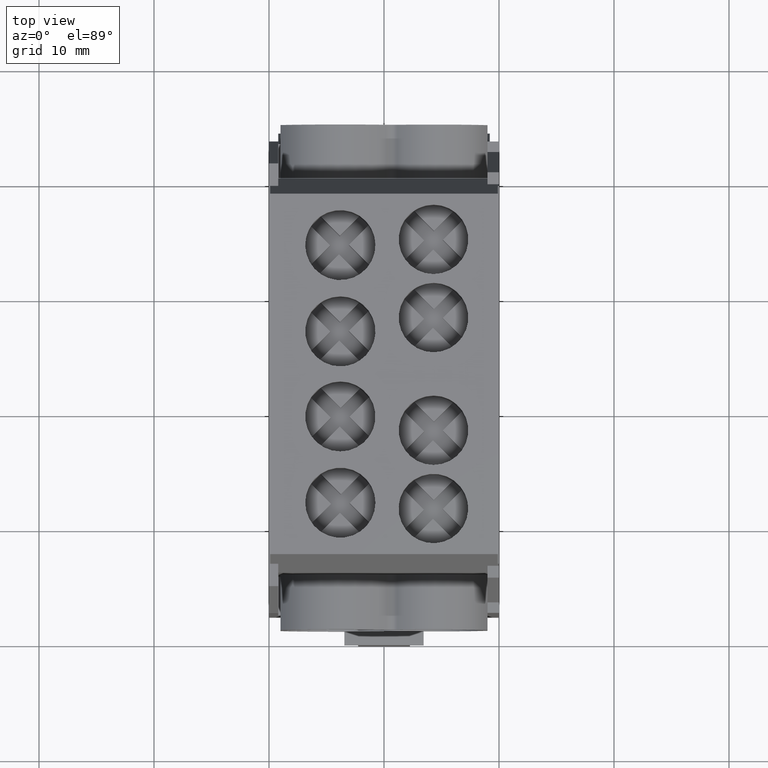
[diagram: clean part render]
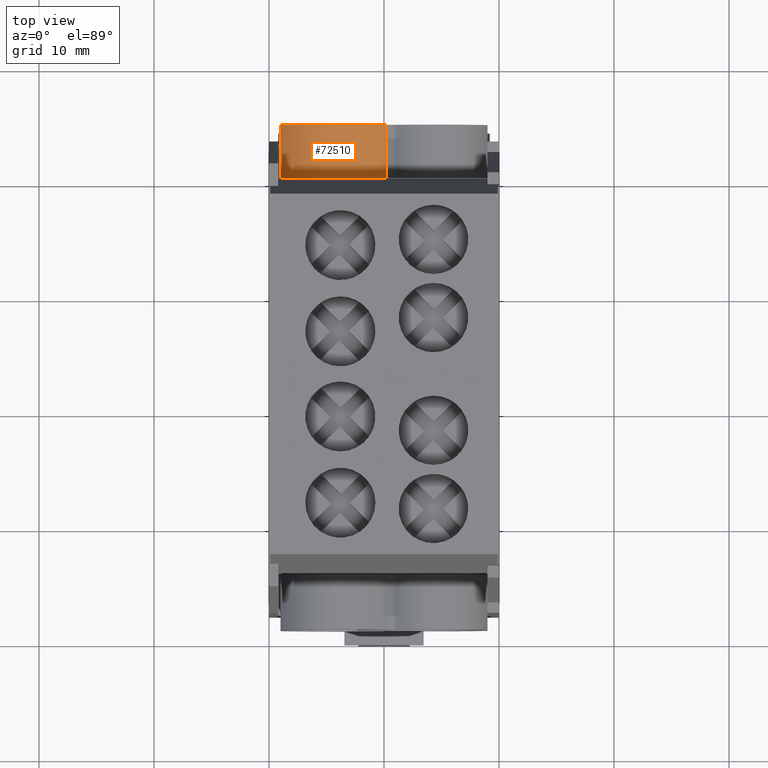
[diagram: same view with one face highlighted and labeled with its STEP entity id]
A machine part, top view. The second image highlights one B-rep face of the part: STEP entity #72510.
In plain terms, the highlighted cylindrical surface (partial cylindrical patch) has radius 6.05 mm, axis along (0, 1, 0).
Its self-contained STEP definition (entity closure, byte-faithful):
#8230=CARTESIAN_POINT('',(-9.,17.15,-18.6530301194917));
#8240=VERTEX_POINT('',#8230);
#8270=CARTESIAN_POINT('',(-3.8,17.15,-21.745359338705));
#8280=DIRECTION('',(2.77555756156289E-16,1.,5.80952514931361E-16));
#8290=DIRECTION('',(-0.859504132231404,-5.83812404768541E-17,
0.511128796564174));
#8300=AXIS2_PLACEMENT_3D('',#8270,#8280,#8290);
#8310=CIRCLE('',#8300,6.05);
#8320=CARTESIAN_POINT('',(0.169149574278855,17.15,-17.1793598142852));
#8330=VERTEX_POINT('',#8320);
#8340=EDGE_CURVE('',#8240,#8330,#8310,.T.);
#67680=CARTESIAN_POINT('',(0.169149574278856,21.95,-17.1793598142852));
#67690=VERTEX_POINT('',#67680);
#67720=CARTESIAN_POINT('',(-3.79999999999999,21.95,-21.745359338705));
#67730=DIRECTION('',(2.77555756156289E-16,1.,5.80952514931361E-16));
#67740=DIRECTION('',(-0.859504132231404,-5.83812404768541E-17,
0.511128796564174));
#67750=AXIS2_PLACEMENT_3D('',#67720,#67730,#67740);
#67760=CIRCLE('',#67750,6.05);
#67770=CARTESIAN_POINT('',(-9.,21.95,-18.6530301194917));
#67780=VERTEX_POINT('',#67770);
#67790=EDGE_CURVE('',#67780,#67690,#67760,.T.);
#72170=CARTESIAN_POINT('',(-9.,21.95,-18.6530301194917));
#72180=DIRECTION('',(-2.77555756156289E-16,-1.,-5.80952514931361E-16));
#72190=VECTOR('',#72180,1.);
#72200=LINE('',#72170,#72190);
#72210=EDGE_CURVE('',#67780,#8240,#72200,.T.);
#72350=CARTESIAN_POINT('',(-3.79999999999999,21.95,-21.745359338705));
#72360=DIRECTION('',(2.77555756156289E-16,1.,5.80952514931361E-16));
#72370=DIRECTION('',(-0.859504132231404,-5.83812404768541E-17,
0.511128796564174));
#72380=AXIS2_PLACEMENT_3D('',#72350,#72360,#72370);
#72390=CYLINDRICAL_SURFACE('',#72380,6.05);
#72400=ORIENTED_EDGE('',*,*,#67790,.F.);
#72410=CARTESIAN_POINT('',(0.169149574278856,21.95,-17.1793598142852));
#72420=DIRECTION('',(-2.77555756156289E-16,-1.,-5.80952514931361E-16));
#72430=VECTOR('',#72420,1.);
#72440=LINE('',#72410,#72430);
#72450=EDGE_CURVE('',#67690,#8330,#72440,.T.);
#72460=ORIENTED_EDGE('',*,*,#72450,.F.);
#72470=ORIENTED_EDGE('',*,*,#8340,.T.);
#72480=ORIENTED_EDGE('',*,*,#72210,.T.);
#72490=EDGE_LOOP('',(#72480,#72470,#72460,#72400));
#72500=FACE_OUTER_BOUND('',#72490,.T.);
#72510=ADVANCED_FACE('',(#72500),#72390,.T.);